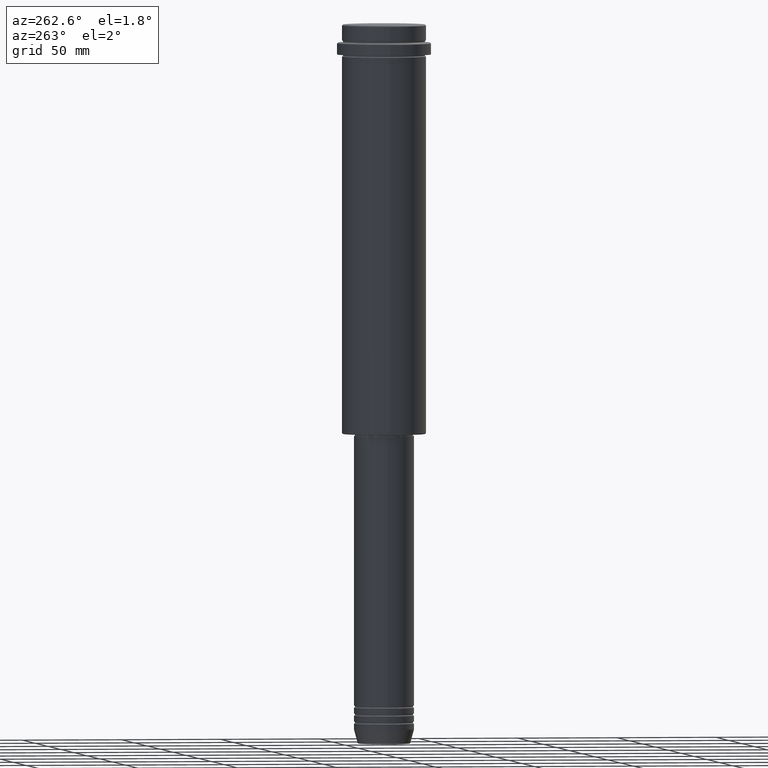
[diagram: clean part render]
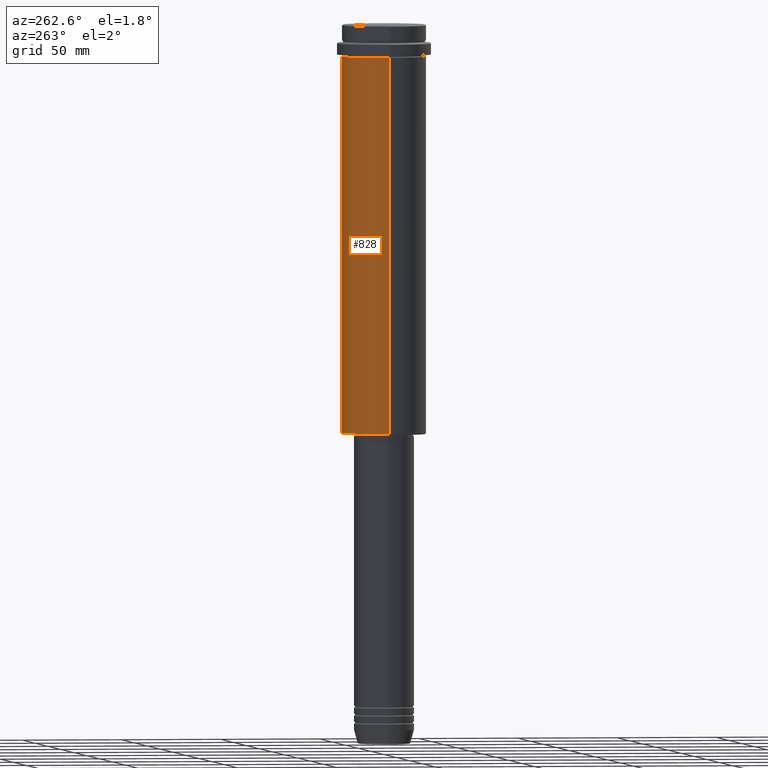
[diagram: same view with one face highlighted and labeled with its STEP entity id]
A machine part, auxiliary view. The second image highlights one B-rep face of the part: STEP entity #828.
In plain terms, the highlighted cylindrical surface (partial cylindrical patch) has radius 21 mm, axis along (-0, -0, 1).
Its self-contained STEP definition (entity closure, byte-faithful):
#7 = EDGE_CURVE ( 'NONE', #1321, #1195, #1040, .T. ) ;
#57 = ORIENTED_EDGE ( 'NONE', *, *, #134, .F. ) ;
#72 = DIRECTION ( 'NONE',  ( 1.000000000000000000, 0.000000000000000000, 0.000000000000000000 ) ) ;
#101 = ORIENTED_EDGE ( 'NONE', *, *, #7, .T. ) ;
#126 = CARTESIAN_POINT ( 'NONE',  ( -20.99999999999999645, 2.571758278209441267E-15, -16.00000000000000355 ) ) ;
#134 = EDGE_CURVE ( 'NONE', #1295, #780, #680, .T. ) ;
#140 = AXIS2_PLACEMENT_3D ( 'NONE', #231, #568, #142 ) ;
#142 = DIRECTION ( 'NONE',  ( -1.000000000000000000, 0.000000000000000000, 0.000000000000000000 ) ) ;
#171 = DIRECTION ( 'NONE',  ( -0.000000000000000000, -0.000000000000000000, 1.000000000000000000 ) ) ;
#201 = ORIENTED_EDGE ( 'NONE', *, *, #1313, .T. ) ;
#216 = EDGE_LOOP ( 'NONE', ( #101, #201, #57, #1187 ) ) ;
#231 = CARTESIAN_POINT ( 'NONE',  ( 0.000000000000000000, 0.000000000000000000, -204.5000000000000853 ) ) ;
#348 = AXIS2_PLACEMENT_3D ( 'NONE', #754, #856, #777 ) ;
#435 = FACE_OUTER_BOUND ( 'NONE', #216, .T. ) ;
#532 = EDGE_CURVE ( 'NONE', #1321, #1295, #756, .T. ) ;
#568 = DIRECTION ( 'NONE',  ( -0.000000000000000000, -0.000000000000000000, 1.000000000000000000 ) ) ;
#648 = CARTESIAN_POINT ( 'NONE',  ( -20.99999999999999645, 2.571758278209441267E-15, -204.5000000000000853 ) ) ;
#680 = CIRCLE ( 'NONE', #702, 20.99999999999999645 ) ;
#702 = AXIS2_PLACEMENT_3D ( 'NONE', #922, #838, #72 ) ;
#703 = VECTOR ( 'NONE', #171, 1000.000000000000000 ) ;
#710 = CARTESIAN_POINT ( 'NONE',  ( -20.99999999999999645, 2.571758278209441267E-15, 0.000000000000000000 ) ) ;
#754 = CARTESIAN_POINT ( 'NONE',  ( 0.000000000000000000, 0.000000000000000000, 0.000000000000000000 ) ) ;
#756 = LINE ( 'NONE', #1322, #1145 ) ;
#763 = CYLINDRICAL_SURFACE ( 'NONE', #348, 20.99999999999999645 ) ;
#772 = DIRECTION ( 'NONE',  ( -0.000000000000000000, -0.000000000000000000, 1.000000000000000000 ) ) ;
#777 = DIRECTION ( 'NONE',  ( 1.000000000000000000, 0.000000000000000000, 0.000000000000000000 ) ) ;
#780 = VERTEX_POINT ( 'NONE', #126 ) ;
#828 = ADVANCED_FACE ( 'NONE', ( #435 ), #763, .T. ) ;
#838 = DIRECTION ( 'NONE',  ( -0.000000000000000000, -0.000000000000000000, 1.000000000000000000 ) ) ;
#856 = DIRECTION ( 'NONE',  ( -0.000000000000000000, -0.000000000000000000, 1.000000000000000000 ) ) ;
#922 = CARTESIAN_POINT ( 'NONE',  ( 0.000000000000000000, 0.000000000000000000, -16.00000000000000355 ) ) ;
#955 = CARTESIAN_POINT ( 'NONE',  ( 20.99999999999999645, 0.000000000000000000, -204.5000000000000853 ) ) ;
#1040 = CIRCLE ( 'NONE', #140, 20.99999999999999645 ) ;
#1141 = CARTESIAN_POINT ( 'NONE',  ( 20.99999999999999645, 0.000000000000000000, -16.00000000000000355 ) ) ;
#1145 = VECTOR ( 'NONE', #772, 1000.000000000000000 ) ;
#1187 = ORIENTED_EDGE ( 'NONE', *, *, #532, .F. ) ;
#1195 = VERTEX_POINT ( 'NONE', #648 ) ;
#1295 = VERTEX_POINT ( 'NONE', #1141 ) ;
#1313 = EDGE_CURVE ( 'NONE', #1195, #780, #1364, .T. ) ;
#1321 = VERTEX_POINT ( 'NONE', #955 ) ;
#1322 = CARTESIAN_POINT ( 'NONE',  ( 20.99999999999999645, 0.000000000000000000, 0.000000000000000000 ) ) ;
#1364 = LINE ( 'NONE', #710, #703 ) ;